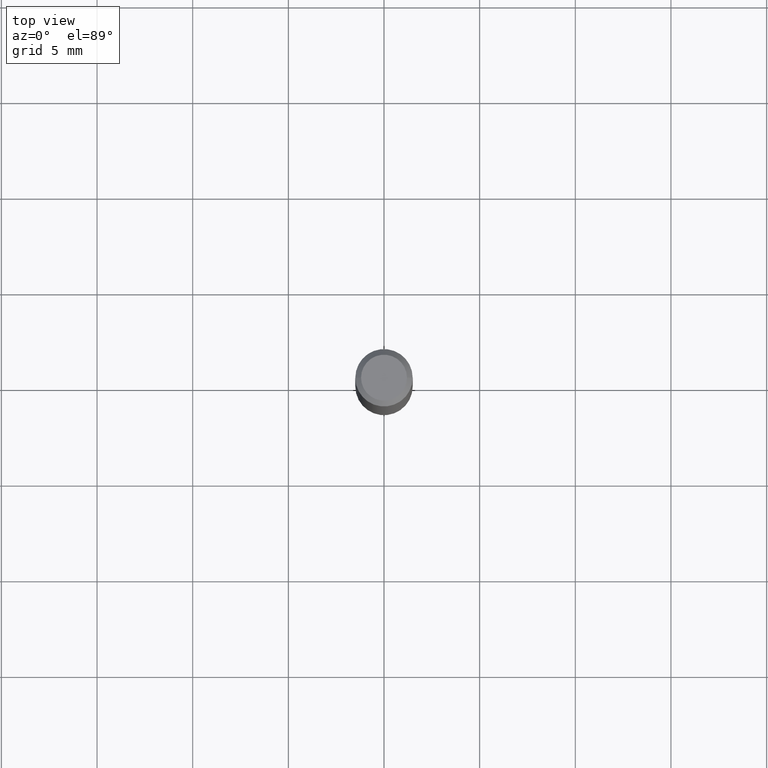
[diagram: clean part render]
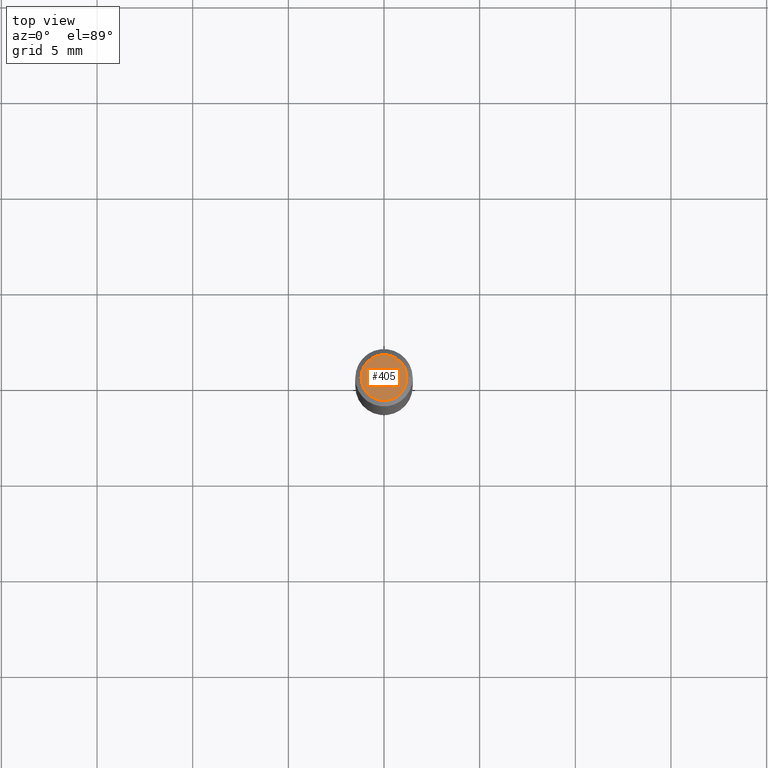
[diagram: same view with one face highlighted and labeled with its STEP entity id]
A machine part, top view. The second image highlights one B-rep face of the part: STEP entity #405.
In plain terms, the highlighted planar face has unit normal (0, -0, -1).
Its self-contained STEP definition (entity closure, byte-faithful):
#35 = ORIENTED_EDGE ( 'NONE', *, *, #185, .T. ) ;
#37 = VERTEX_POINT ( 'NONE', #145 ) ;
#87 = CARTESIAN_POINT ( 'NONE',  ( 4.132873053354867254E-48, -5.900647395337818946E-34, -1.690012582823346072E-19 ) ) ;
#112 = DIRECTION ( 'NONE',  ( 1.000000000000000000, -6.982962677686266711E-15, 4.876185090822587894E-29 ) ) ;
#130 = EDGE_CURVE ( 'NONE', #37, #241, #227, .T. ) ;
#145 = CARTESIAN_POINT ( 'NONE',  ( 0.04724000000000000421, -3.852183633974369345E-16, -3.380025165621689721E-19 ) ) ;
#157 = PLANE ( 'NONE',  #320 ) ;
#158 = CARTESIAN_POINT ( 'NONE',  ( 8.265746106709734507E-48, -1.180129479067563789E-33, -3.380025165646692144E-19 ) ) ;
#185 = EDGE_CURVE ( 'NONE', #241, #37, #252, .T. ) ;
#223 = AXIS2_PLACEMENT_3D ( 'NONE', #158, #307, #112 ) ;
#227 = CIRCLE ( 'NONE', #265, 0.04724000000000000421 ) ;
#241 = VERTEX_POINT ( 'NONE', #458 ) ;
#252 = CIRCLE ( 'NONE', #223, 0.04724000000000000421 ) ;
#257 = CARTESIAN_POINT ( 'NONE',  ( 8.265746106709734507E-48, -1.180129479067563789E-33, -3.380025165646692144E-19 ) ) ;
#265 = AXIS2_PLACEMENT_3D ( 'NONE', #257, #466, #388 ) ;
#268 = EDGE_LOOP ( 'NONE', ( #35, #376 ) ) ;
#283 = DIRECTION ( 'NONE',  ( 2.438088387897960049E-29, -3.491481338843145188E-15, -1.000000000000000000 ) ) ;
#307 = DIRECTION ( 'NONE',  ( -2.445468806185136597E-29, 3.491481338843145583E-15, 1.000000000000000000 ) ) ;
#308 = DIRECTION ( 'NONE',  ( -1.000000000000000000, 6.982962677686265922E-15, -4.876176775795935793E-29 ) ) ;
#320 = AXIS2_PLACEMENT_3D ( 'NONE', #87, #283, #308 ) ;
#376 = ORIENTED_EDGE ( 'NONE', *, *, #130, .T. ) ;
#388 = DIRECTION ( 'NONE',  ( 1.000000000000000000, -6.982962677686266711E-15, 4.876185090822587894E-29 ) ) ;
#405 = ADVANCED_FACE ( 'NONE', ( #415 ), #157, .F. ) ;
#415 = FACE_OUTER_BOUND ( 'NONE', #268, .T. ) ;
#458 = CARTESIAN_POINT ( 'NONE',  ( -0.04724000000000000421, 3.504923541997677355E-16, -3.380025165670481712E-19 ) ) ;
#466 = DIRECTION ( 'NONE',  ( -2.445468806185136597E-29, 3.491481338843145583E-15, 1.000000000000000000 ) ) ;